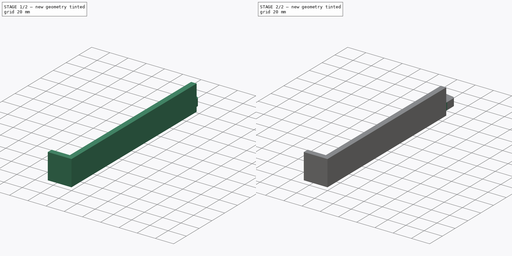
[diagram: build sequence overview — one tinted view per stage of 2, left to right]
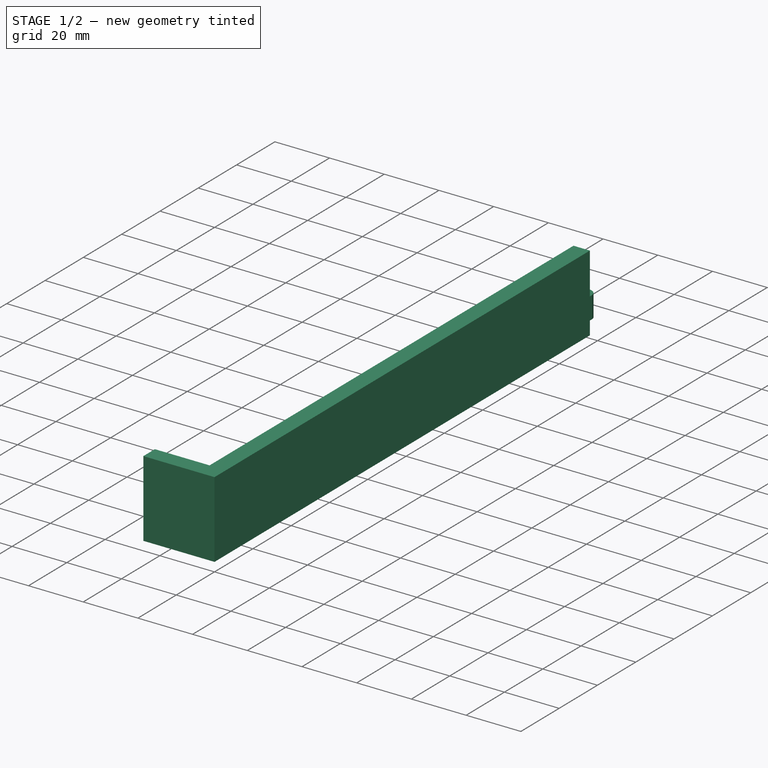
[diagram: stage 1 of 2 — iso view after this stage's code; geometry added in this stage tinted green]
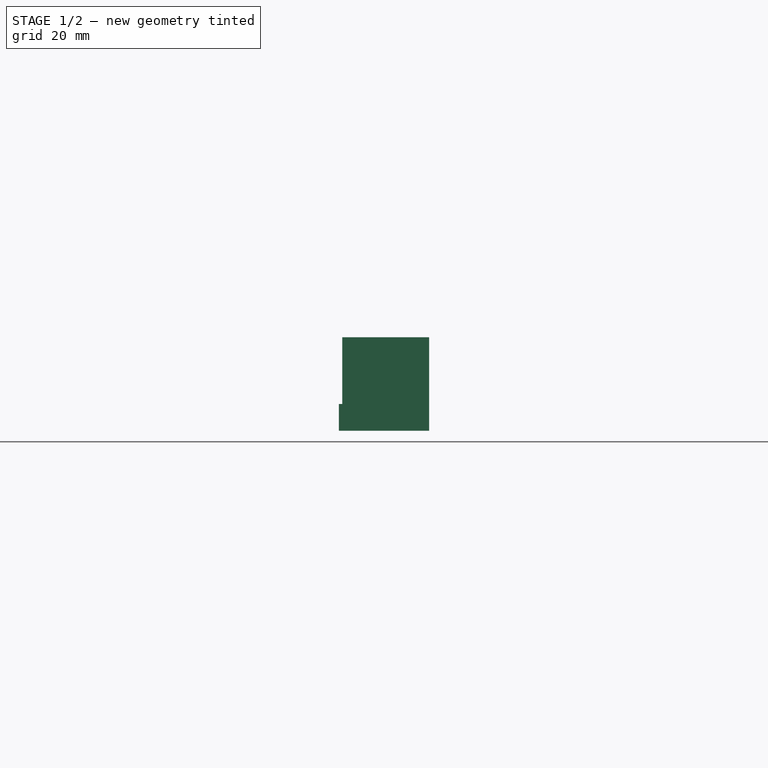
[diagram: stage 1 of 2 — front view after this stage's code; geometry added in this stage tinted green]
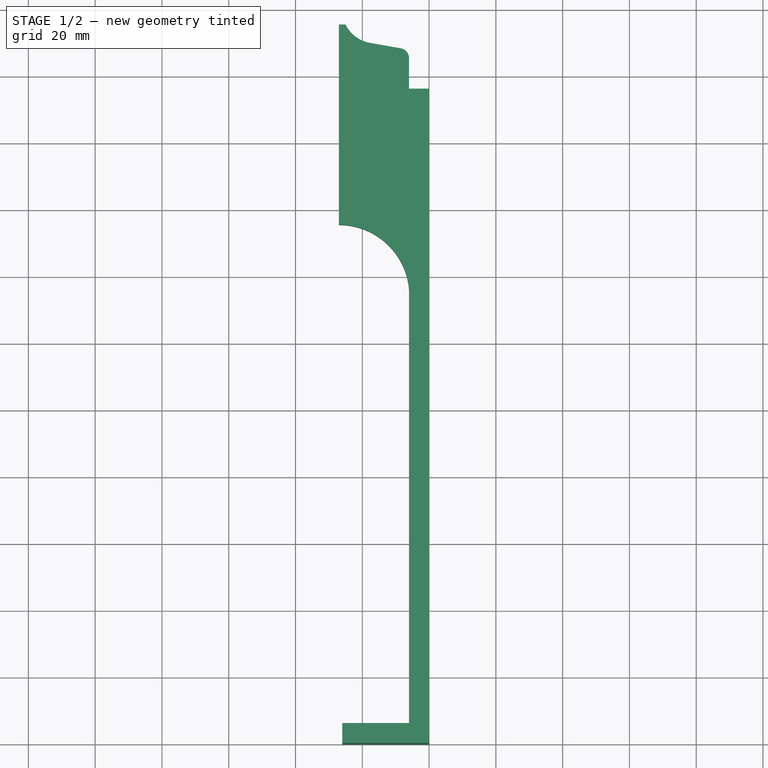
[diagram: stage 1 of 2 — top view after this stage's code; geometry added in this stage tinted green]
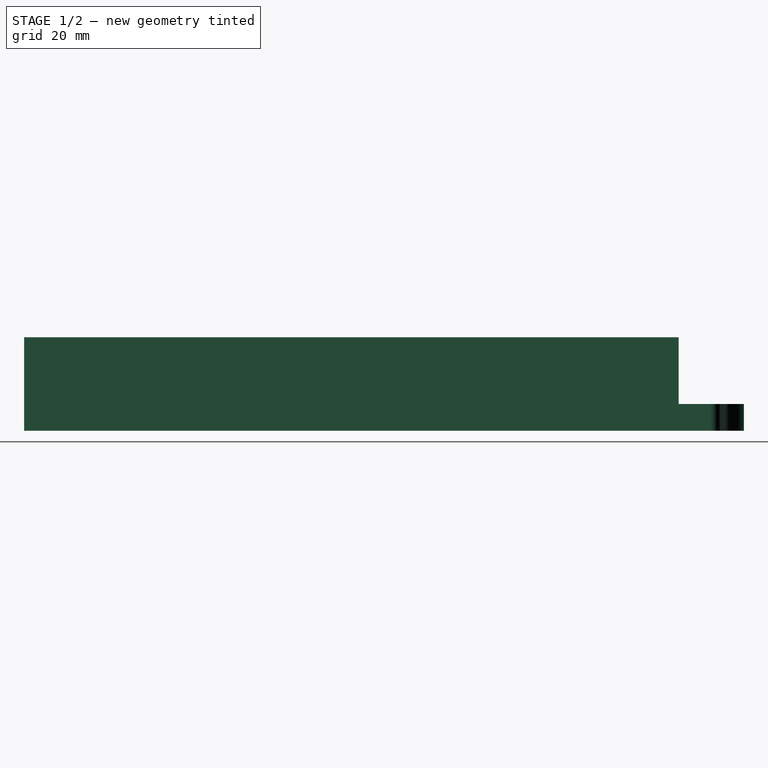
[diagram: stage 1 of 2 — right view after this stage's code; geometry added in this stage tinted green]
FCSTD DOCUMENT  (FreeCAD 0.17R7732 (Git))
Label: 190mm_spacer-v1.2
License: CreativeCommons Attribution-ShareAlike
LicenseURL: http://creativecommons.org/licenses/by-sa/4.0/
objects: Sketcher::SketchObject×4, PartDesign::Pad×3, PartDesign::Body×2, PartDesign::Pocket×1, App::Part×1, Part::Feature×1
note: 15 computed .brp shape members not serialized (recipe doc carries the construction recipe); baked Part::Feature solids carry a one-line shape summary decoded from their .brp

FEATURE [Sketcher::SketchObject] Sketch
  MapMode = 5
  Support = -> [XY_Plane001]
  sketch-geometry (13):
    g0: LineSegment StartX=-26 StartY=6 StartZ=0 EndX=-6 EndY=6 EndZ=0
    g1: LineSegment StartX=-6 StartY=6 StartZ=0 EndX=-6 EndY=136 EndZ=0
    g2: LineSegment StartX=-6 StartY=205.483 StartZ=0 EndX=-6 EndY=196 EndZ=0
    g3: LineSegment StartX=-6 StartY=196 StartZ=0 EndX=0 EndY=196 EndZ=0
    g4: LineSegment StartX=0 StartY=196 StartZ=0 EndX=0 EndY=0 EndZ=0
    g5: LineSegment StartX=0 StartY=0 StartZ=0 EndX=-26 EndY=0 EndZ=0
    g6: LineSegment StartX=-26 StartY=0 StartZ=0 EndX=-26 EndY=6 EndZ=0
    g7: ArcOfCircle CenterX=-9 CenterY=205.483 CenterZ=0 NormalX=0 NormalY=0 NormalZ=1 Radius=3 StartAngle=6.73761e-06 EndAngle=1.39627
    g8: LineSegment StartX=-8.47907 StartY=208.437 StartZ=0 EndX=-17.7363 EndY=210.07 EndZ=0
    g9: ArcOfCircle CenterX=-15.9998 CenterY=219.918 CenterZ=0 NormalX=0 NormalY=0 NormalZ=1 Radius=10 StartAngle=3.59257 EndAngle=4.53786
    g10: LineSegment StartX=-25 StartY=215.559 StartZ=0 EndX=-27 EndY=215.559 EndZ=0
    g11: LineSegment StartX=-27 StartY=215.559 StartZ=0 EndX=-27 EndY=155.559 EndZ=0
    g12: ArcOfCircle CenterX=-27 CenterY=134.506 CenterZ=0 NormalX=0 NormalY=0 NormalZ=1 Radius=21.0531 StartAngle=0.0710102 EndAngle=1.5708
  constraints (42):
    c: Horizontal(g0)
    c: Coincident(g0,g1)
    c: Vertical(g1)
    c: Vertical(g2)
    c: Coincident(g2,g3)
    c: Horizontal(g3)
    c: Coincident(g3,g4)
    c: Vertical(g4)
    c: Coincident(g4,g5)
    c: Horizontal(g5)
    c: Coincident(g5,g6)
    c: Coincident(g6,g0)
    c: Vertical(g6)
    c: DistanceY(g6) = 6
    c: DistanceX(g0) = 20
    c: DistanceX(g0,g4) = 6
    c: DistanceY(g1) = 130
    c: DistanceX(g3) = 6
    c: DistanceY(g2,g0) = -190
    c: DistanceY(g2) = -9.483
    c: Coincident(g7,g2)
    c: Radius(g7) = 3
    c: Tangent(g7,g2)
    c: Angle(g3,g8) = 2.96706
    c: Coincident(g7,g8)
    c: Tangent(g8,g7)
    c: Distance(g8) = 9.4
    c: Coincident(g9,g8)
    c: Tangent(g8,g9)
    c: Radius(g9) = 10
    c: Horizontal(g10)
    c: DistanceX(g10) = -2
    c: Coincident(g11,g10)
    c: Vertical(g11)
    c: DistanceY(g11) = -60
    c: Coincident(g10,g9)
    c: DistanceX(g9,g3) = 25
    c: Coincident(g12,g11)
    c: Coincident(g12,g1)
    c: PointOnObject(g12,g11)
    c: PointOnObject(g3,g-2)
    c: PointOnObject(g4,g-1)
FEATURE [PartDesign::Pad] Pad
  Length = 8
  Length2 = 100
  Profile = -> Sketch
  Type = 0
FEATURE [Sketcher::SketchObject] Sketch001
  ExternalGeometry = -> [Pad]
  MapMode = 5
  Placement = pos=(0,0,8) rot=(0,0,1;0rad)
  Support = -> [Pad]
  sketch-geometry (6):
    g0: LineSegment StartX=-26 StartY=6 StartZ=0 EndX=-26 EndY=0 EndZ=0
    g1: LineSegment StartX=-26 StartY=0 StartZ=0 EndX=0 EndY=0 EndZ=0
    g2: LineSegment StartX=0 StartY=0 StartZ=0 EndX=0 EndY=196 EndZ=0
    g3: LineSegment StartX=0 StartY=196 StartZ=0 EndX=-6 EndY=196 EndZ=0
    g4: LineSegment StartX=-6 StartY=196 StartZ=0 EndX=-6 EndY=6 EndZ=0
    g5: LineSegment StartX=-6 StartY=6 StartZ=0 EndX=-26 EndY=6 EndZ=0
  constraints (14):
    c: Coincident(g-4,g0)
    c: Coincident(g0,g1)
    c: Horizontal(g1)
    c: Coincident(g1,g2)
    c: Vertical(g2)
    c: Coincident(g2,g3)
    c: Coincident(g3,g-3)
    c: Coincident(g3,g4)
    c: Coincident(g4,g-4)
    c: Coincident(g4,g5)
    c: Coincident(g5,g0)
    c: Horizontal(g3)
    c: Vertical(g0)
    c: Coincident(g1,g-5)
FEATURE [PartDesign::Pad] Pad001
  BaseFeature = -> Pad
  Length = 20
  Length2 = 100
  Profile = -> Sketch001
  Type = 0
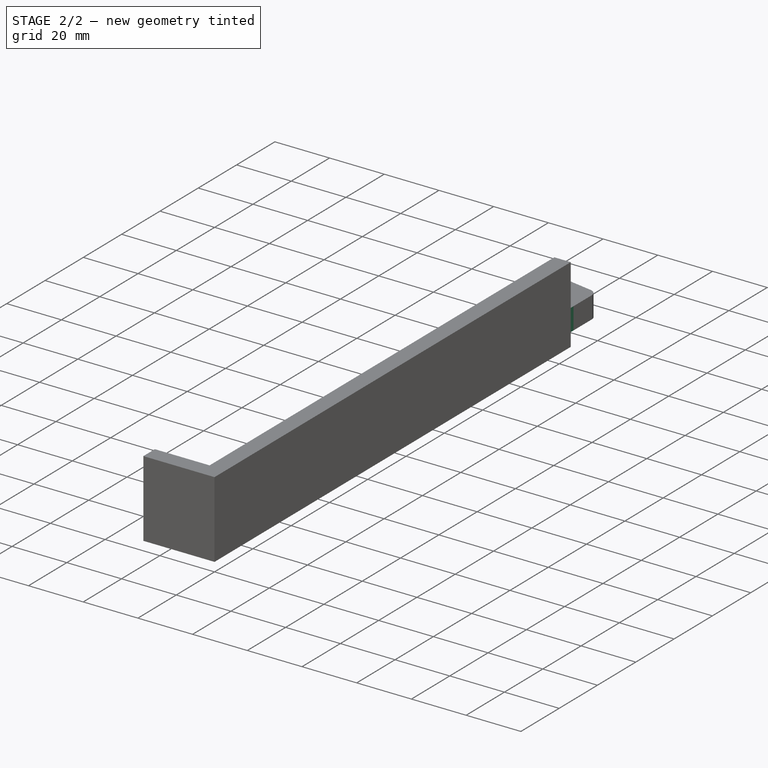
[diagram: stage 2 of 2 — iso view after this stage's code; geometry added in this stage tinted green]
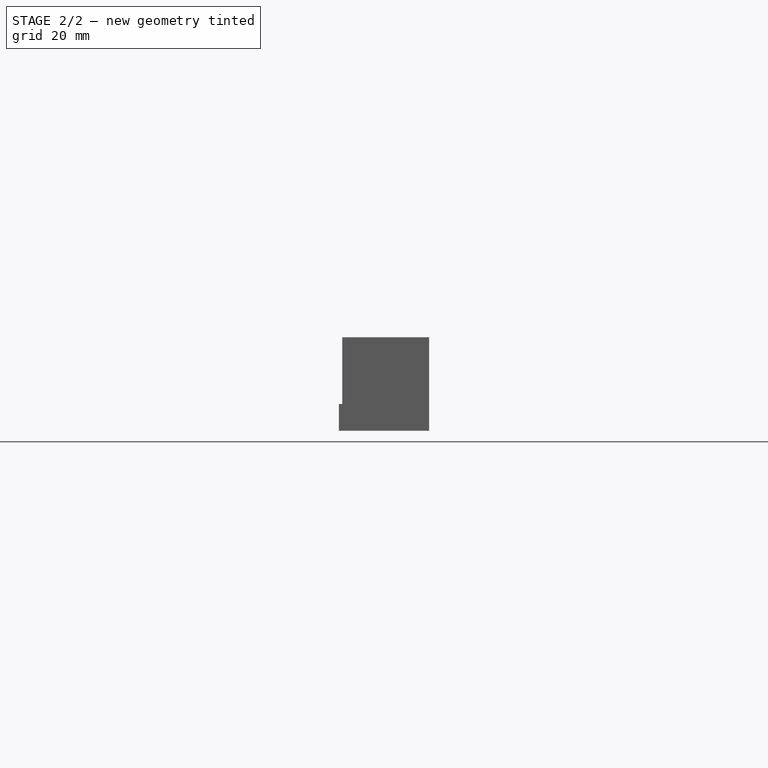
[diagram: stage 2 of 2 — front view after this stage's code; geometry added in this stage tinted green]
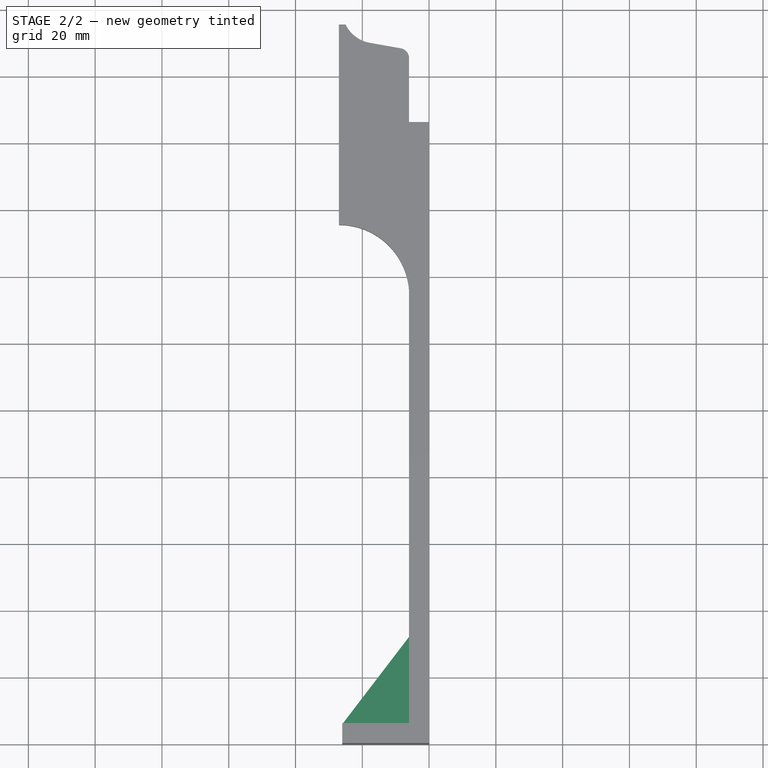
[diagram: stage 2 of 2 — top view after this stage's code; geometry added in this stage tinted green]
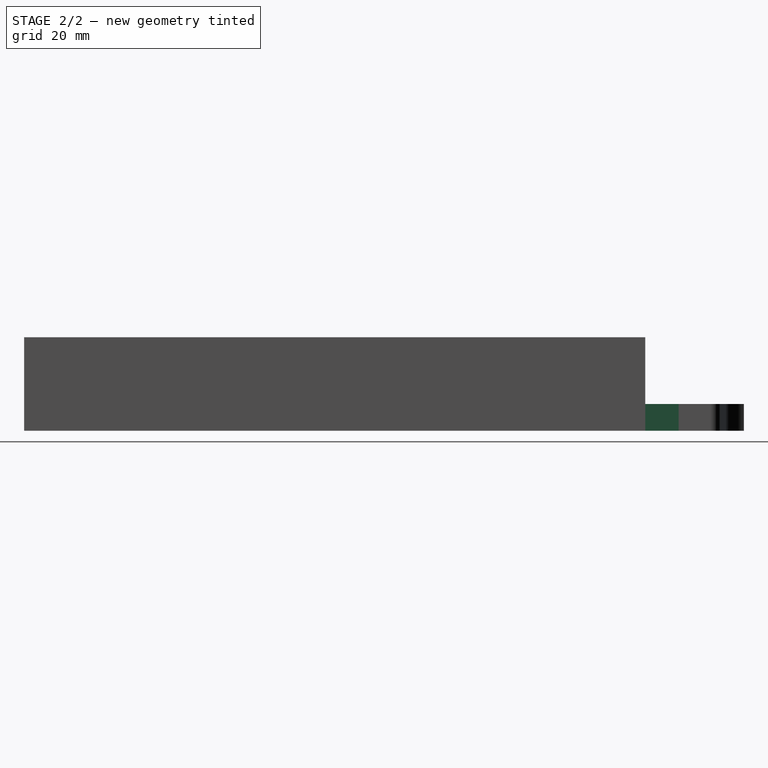
[diagram: stage 2 of 2 — right view after this stage's code; geometry added in this stage tinted green]
FEATURE [Sketcher::SketchObject] Sketch002
  ExternalGeometry = -> [Pad001]
  MapMode = 5
  Placement = pos=(0,0,0) rot=(1,0,0;3.14159rad)
  Support = -> [Pad001]
  sketch-geometry (4):
    g0: LineSegment StartX=-26 StartY=-6 StartZ=0 EndX=0 EndY=-40 EndZ=0
    g1: LineSegment StartX=0 StartY=-40 StartZ=0 EndX=0 EndY=0 EndZ=0
    g2: LineSegment StartX=-26 StartY=0 StartZ=0 EndX=0 EndY=0 EndZ=0
    g3: LineSegment StartX=-26 StartY=0 StartZ=0 EndX=-26 EndY=-6 EndZ=0
  constraints (9):
    c: Coincident(g0,g-3)
    c: PointOnObject(g0,g-4)
    c: Coincident(g1,g0)
    c: Coincident(g2,g-3)
    c: Coincident(g2,g1)
    c: Coincident(g3,g2)
    c: Coincident(g3,g0)
    c: Coincident(g1,g-4)
    c: DistanceY(g0,g1) = 40
FEATURE [PartDesign::Pad] Pad002
  BaseFeature = -> Pad001
  Length = 8
  Length2 = 100
  Profile = -> Sketch002
  Reversed = true
  Type = 0
FEATURE [PartDesign::Body] Body
  Origin = -> BodyOrigin
FEATURE [Sketcher::SketchObject] Sketch003
  ExternalGeometry = -> [Pad002]
  MapMode = 5
  Placement = pos=(0,0,28) rot=(0,0,1;0rad)
  Support = -> [Pad002]
  sketch-geometry (4):
    g0: LineSegment StartX=-6 StartY=196 StartZ=0 EndX=4 EndY=196 EndZ=0
    g1: LineSegment StartX=4 StartY=196 StartZ=0 EndX=4 EndY=186 EndZ=0
    g2: LineSegment StartX=4 StartY=186 StartZ=0 EndX=-6 EndY=186 EndZ=0
    g3: LineSegment StartX=-6 StartY=186 StartZ=0 EndX=-6 EndY=196 EndZ=0
  constraints (11):
    c: Coincident(g0,g1)
    c: Coincident(g1,g2)
    c: Coincident(g2,g3)
    c: Coincident(g3,g0)
    c: Horizontal(g0)
    c: Horizontal(g2)
    c: Vertical(g1)
    c: Vertical(g3)
    c: Coincident(g0,g-3)
    c: DistanceX(g2,g2) = 10
    c: DistanceY(g3,g3) = 10
FEATURE [PartDesign::Pocket] Pocket
  BaseFeature = -> Pad002
  Length = 5
  Profile = -> Sketch003
  Type = 1
FEATURE [PartDesign::Body] PocketBody
  Model = -> [Sketch,Pad,Sketch001,Pad001,Sketch002,Pad002,Sketch003,Pocket]
  Origin = -> PocketBodyOrigin
  Tip = -> Pocket
FEATURE [App::Part] Part
  Group = -> [PocketBody,Body]
  License = CC BY 3.0
  LicenseURL = http://creativecommons.org/licenses/by/3.0/
  Origin = -> PartOrigin
FEATURE [Part::Feature] Pocket001
  shape: bbox 27 x 215.6 x 28 mm, 18 faces (baked)
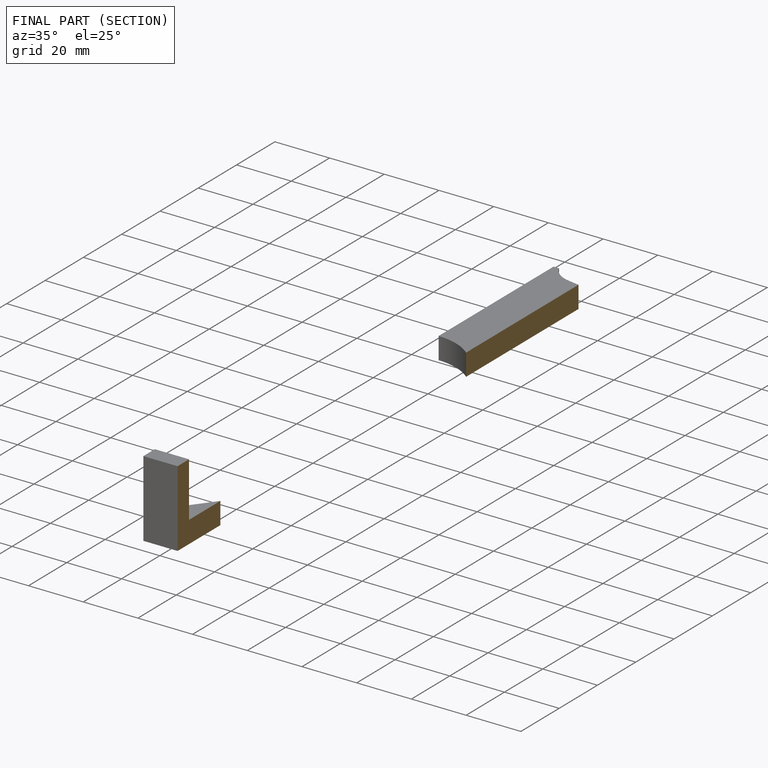
[diagram: finished part — half-section view (interior)]
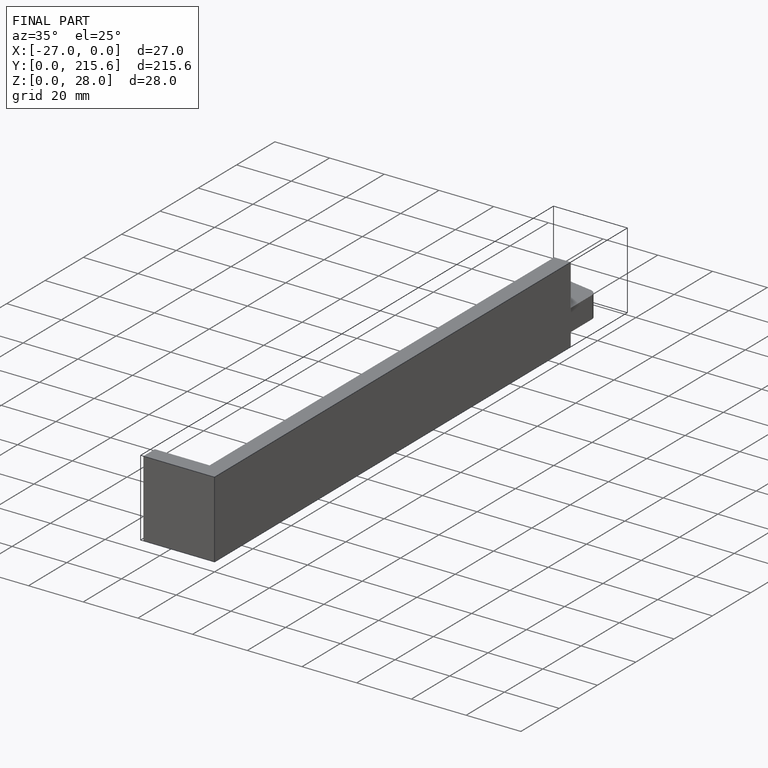
[diagram: finished part — iso view with bounding-box wireframe]
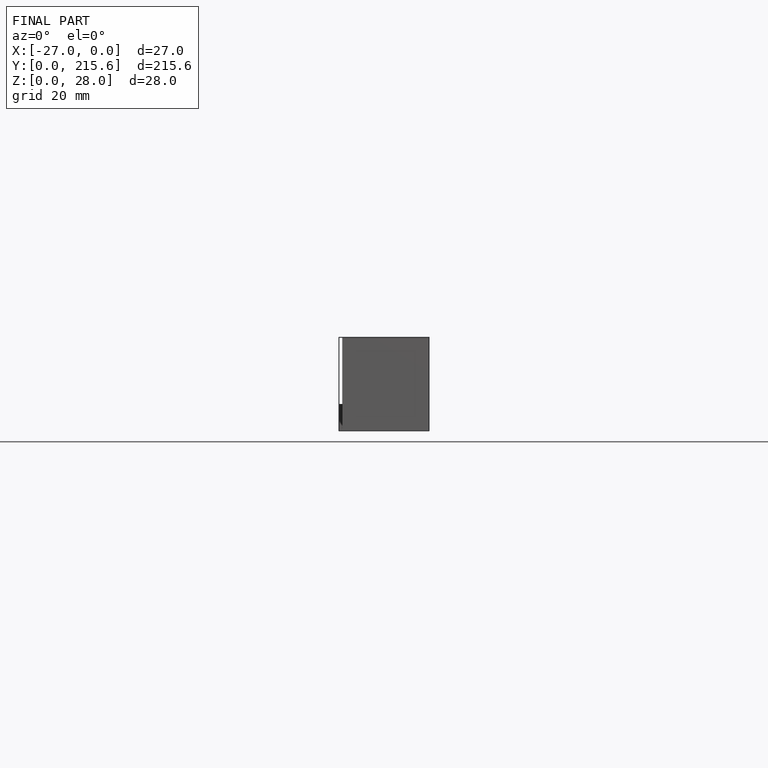
[diagram: finished part — front view with bounding-box wireframe]
